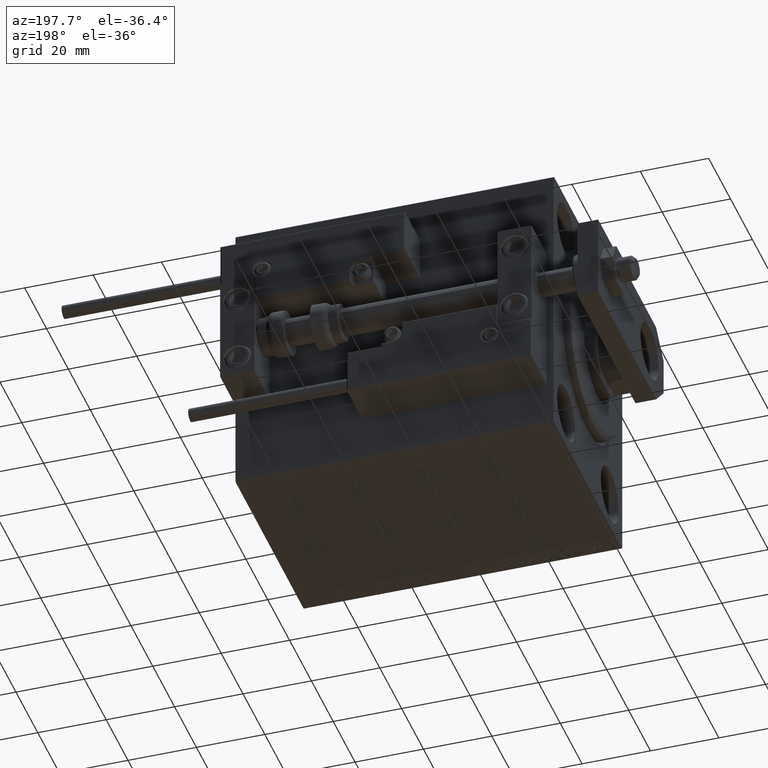
[diagram: clean part render]
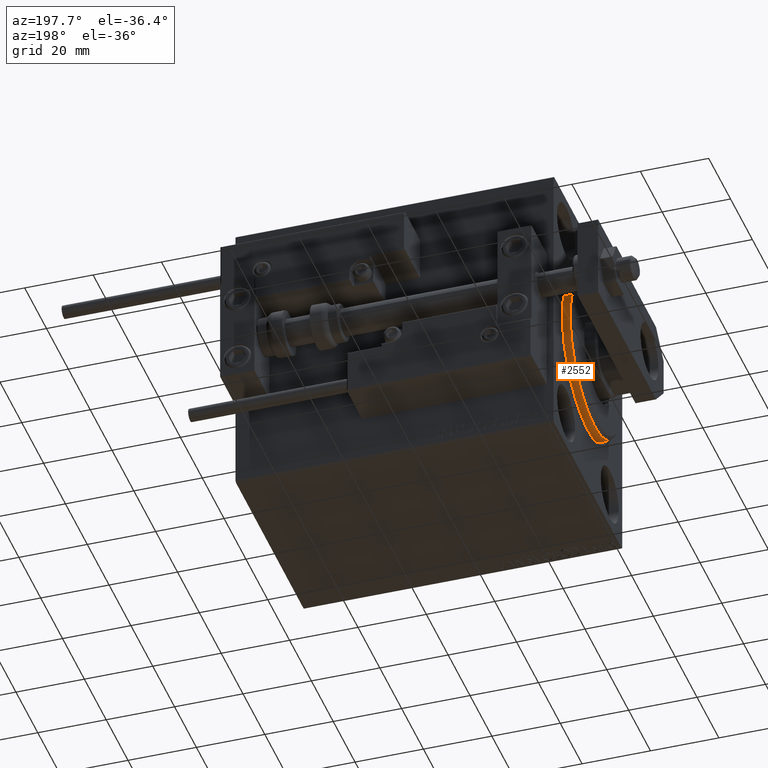
[diagram: same view with one face highlighted and labeled with its STEP entity id]
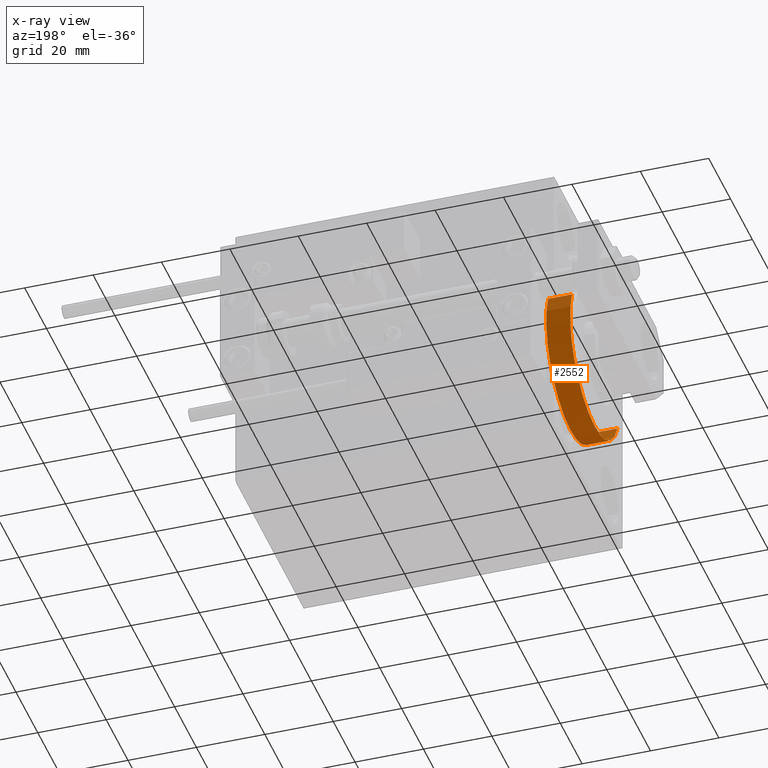
[diagram: x-ray of the same camera — body ghosted, the highlighted face saturated]
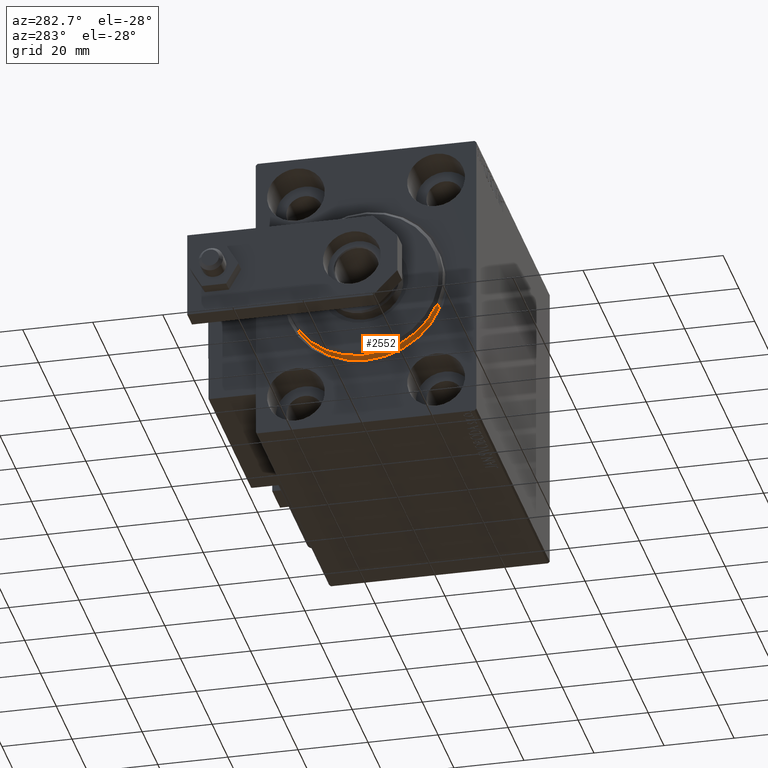
[diagram: same view with one face highlighted and labeled with its STEP entity id]
A machine part, auxiliary view. The second image highlights one B-rep face of the part: STEP entity #2552.
The next image is the same camera in x-ray: the body ghosted, the highlighted face saturated — about 0% of this face is hidden behind the body in this view.
A second angle (auxiliary view) of the same face is appended — the face is thin or edge-on in the first view.
In plain terms, the highlighted cylindrical surface (partial cylindrical patch) has radius 22.5 mm, axis along (1, 0, 0).
Its self-contained STEP definition (entity closure, byte-faithful):
#1140 = CARTESIAN_POINT ( 'NONE',  ( -5.000000000000000000, 2.755455298081545172E-15, -22.50000000000000355 ) ) ;
#2552 = ADVANCED_FACE ( 'NONE', ( #9233 ), #8486, .T. ) ;
#2588 = CARTESIAN_POINT ( 'NONE',  ( 3.000000000000000000, 0.000000000000000000, 22.50000000000000355 ) ) ;
#3096 = LINE ( 'NONE', #2588, #4595 ) ;
#4595 = VECTOR ( 'NONE', #37031, 1000.000000000000000 ) ;
#5054 = EDGE_CURVE ( 'NONE', #42712, #10242, #30560, .T. ) ;
#5855 = EDGE_CURVE ( 'NONE', #22362, #42712, #38571, .T. ) ;
#7737 = ORIENTED_EDGE ( 'NONE', *, *, #5855, .T. ) ;
#8486 = CYLINDRICAL_SURFACE ( 'NONE', #13560, 22.50000000000000355 ) ;
#9233 = FACE_OUTER_BOUND ( 'NONE', #10497, .T. ) ;
#10242 = VERTEX_POINT ( 'NONE', #1140 ) ;
#10497 = EDGE_LOOP ( 'NONE', ( #7737, #30655, #16282, #34943 ) ) ;
#11100 = CARTESIAN_POINT ( 'NONE',  ( -5.000000000000000000, 0.000000000000000000, 0.000000000000000000 ) ) ;
#12042 = CARTESIAN_POINT ( 'NONE',  ( 3.000000000000000000, 0.000000000000000000, 0.000000000000000000 ) ) ;
#13560 = AXIS2_PLACEMENT_3D ( 'NONE', #12042, #23681, #39350 ) ;
#16282 = ORIENTED_EDGE ( 'NONE', *, *, #47756, .F. ) ;
#16484 = CARTESIAN_POINT ( 'NONE',  ( -5.000000000000000000, 0.000000000000000000, 22.50000000000000355 ) ) ;
#16727 = AXIS2_PLACEMENT_3D ( 'NONE', #40498, #43818, #20296 ) ;
#20296 = DIRECTION ( 'NONE',  ( 0.000000000000000000, 0.000000000000000000, -1.000000000000000000 ) ) ;
#22362 = VERTEX_POINT ( 'NONE', #37146 ) ;
#23681 = DIRECTION ( 'NONE',  ( -1.000000000000000000, -0.000000000000000000, -0.000000000000000000 ) ) ;
#30560 = LINE ( 'NONE', #49794, #49885 ) ;
#30655 = ORIENTED_EDGE ( 'NONE', *, *, #5054, .T. ) ;
#31222 = VERTEX_POINT ( 'NONE', #16484 ) ;
#34943 = ORIENTED_EDGE ( 'NONE', *, *, #44030, .F. ) ;
#37031 = DIRECTION ( 'NONE',  ( -1.000000000000000000, -0.000000000000000000, -0.000000000000000000 ) ) ;
#37146 = CARTESIAN_POINT ( 'NONE',  ( 1.999999999999999112, 0.000000000000000000, 22.50000000000000355 ) ) ;
#38571 = CIRCLE ( 'NONE', #16727, 22.50000000000000355 ) ;
#39350 = DIRECTION ( 'NONE',  ( 0.000000000000000000, 0.000000000000000000, 1.000000000000000000 ) ) ;
#40498 = CARTESIAN_POINT ( 'NONE',  ( 1.999999999999999112, 0.000000000000000000, 0.000000000000000000 ) ) ;
#42712 = VERTEX_POINT ( 'NONE', #43933 ) ;
#43818 = DIRECTION ( 'NONE',  ( -1.000000000000000000, 0.000000000000000000, 0.000000000000000000 ) ) ;
#43933 = CARTESIAN_POINT ( 'NONE',  ( 1.999999999999999112, 2.755455298081545172E-15, -22.50000000000000355 ) ) ;
#44030 = EDGE_CURVE ( 'NONE', #22362, #31222, #3096, .T. ) ;
#45773 = DIRECTION ( 'NONE',  ( -1.000000000000000000, 0.000000000000000000, 0.000000000000000000 ) ) ;
#45895 = CIRCLE ( 'NONE', #47480, 22.50000000000000355 ) ;
#46005 = DIRECTION ( 'NONE',  ( -1.000000000000000000, -0.000000000000000000, -0.000000000000000000 ) ) ;
#47480 = AXIS2_PLACEMENT_3D ( 'NONE', #11100, #45773, #49320 ) ;
#47756 = EDGE_CURVE ( 'NONE', #31222, #10242, #45895, .T. ) ;
#49320 = DIRECTION ( 'NONE',  ( 0.000000000000000000, 0.000000000000000000, 1.000000000000000000 ) ) ;
#49794 = CARTESIAN_POINT ( 'NONE',  ( 3.000000000000000000, 2.755455298081545172E-15, -22.50000000000000355 ) ) ;
#49885 = VECTOR ( 'NONE', #46005, 1000.000000000000000 ) ;